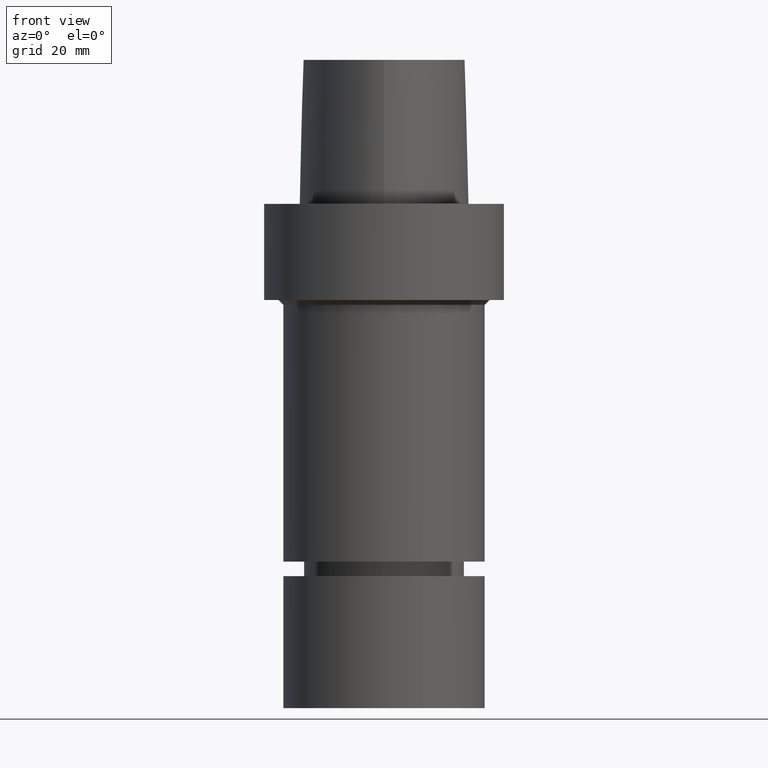
[diagram: clean part render]
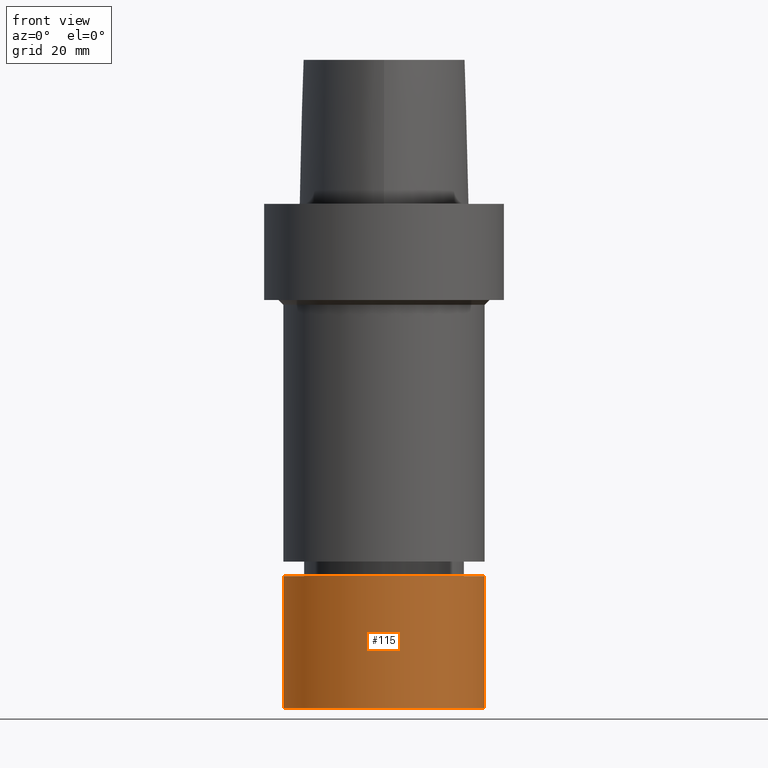
[diagram: same view with one face highlighted and labeled with its STEP entity id]
A machine part, front view. The second image highlights one B-rep face of the part: STEP entity #115.
In plain terms, the highlighted cylindrical surface (bore or boss wall) has radius 21 mm, axis along (0, 0, -1).
Its self-contained STEP definition (entity closure, byte-faithful):
#107=EDGE_CURVE('Unnamed[1]',#229,#229,#230,.T.);
#112=EDGE_CURVE('Unnamed[1]',#237,#237,#238,.T.);
#115=ADVANCED_FACE('Unnamed[1]',(#241,#242),#243,.T.);
#229=VERTEX_POINT('',#476);
#230=CIRCLE('',#477,21.0);
#237=VERTEX_POINT('',#486);
#238=CIRCLE('',#487,21.0);
#241=FACE_BOUND('',#491,.T.);
#242=FACE_BOUND('',#492,.T.);
#243=CYLINDRICAL_SURFACE('',#493,21.0);
#476=CARTESIAN_POINT('',(6.4293956955236E-015,21.0,-105.0));
#477=AXIS2_PLACEMENT_3D('',#1053,#1054,#1055);
#486=CARTESIAN_POINT('',(4.74550634669599E-015,21.0,-77.5));
#487=AXIS2_PLACEMENT_3D('',#1062,#1063,#1064);
#491=EDGE_LOOP('',(#1066));
#492=EDGE_LOOP('',(#1067));
#493=AXIS2_PLACEMENT_3D('',#1068,#1069,#1070);
#1053=CARTESIAN_POINT('',(6.4293956955236E-015,1.28587913910472E-014,-105.0));
#1054=DIRECTION('',(6.12323399573677E-017,1.22464679914735E-016,-1.0));
#1055=DIRECTION('',(-1.23259516440783E-032,1.0,1.22464679914735E-016));
#1062=CARTESIAN_POINT('',(4.74550634669599E-015,9.49101269339199E-015,-77.5));
#1063=DIRECTION('',(6.12323399573677E-017,1.22464679914735E-016,-1.0));
#1064=DIRECTION('',(-1.23259516440783E-032,1.0,1.22464679914735E-016));
#1066=ORIENTED_EDGE('',*,*,#107,.F.);
#1067=ORIENTED_EDGE('',*,*,#112,.T.);
#1068=CARTESIAN_POINT('',(5.5874510211098E-015,1.11749020422196E-014,-91.25));
#1069=DIRECTION('',(6.12323399573677E-017,1.22464679914735E-016,-1.0));
#1070=DIRECTION('',(-1.23259516440783E-032,1.0,1.22464679914735E-016));